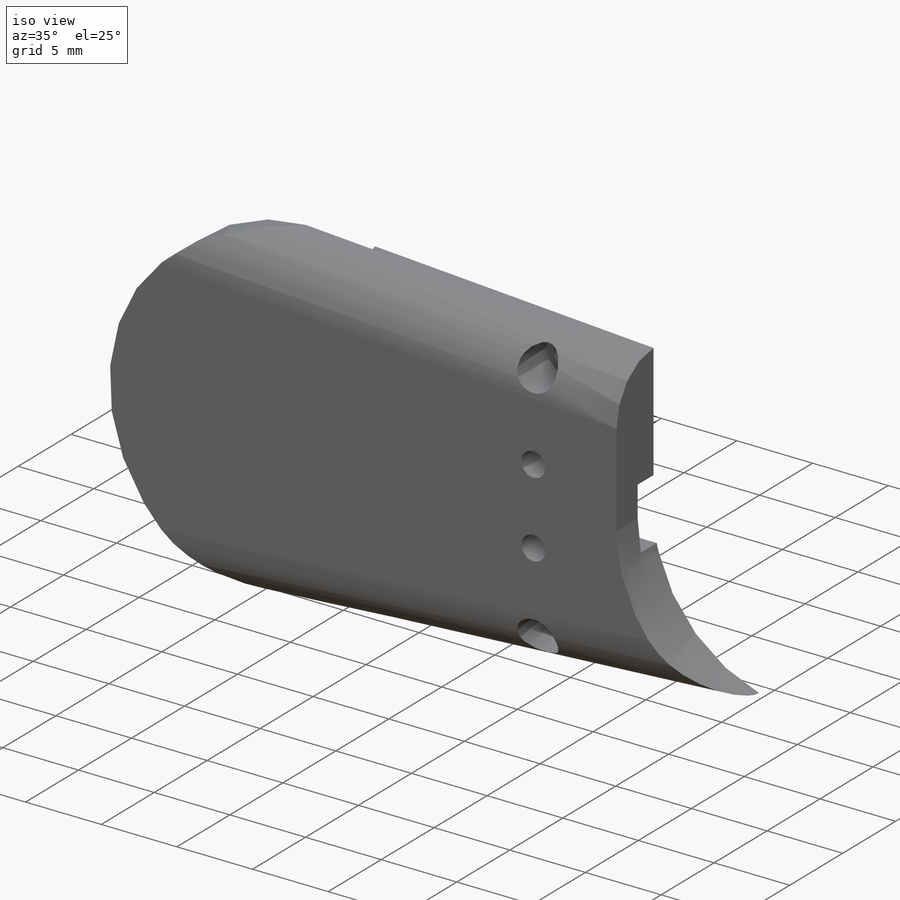
[diagram: iso view]
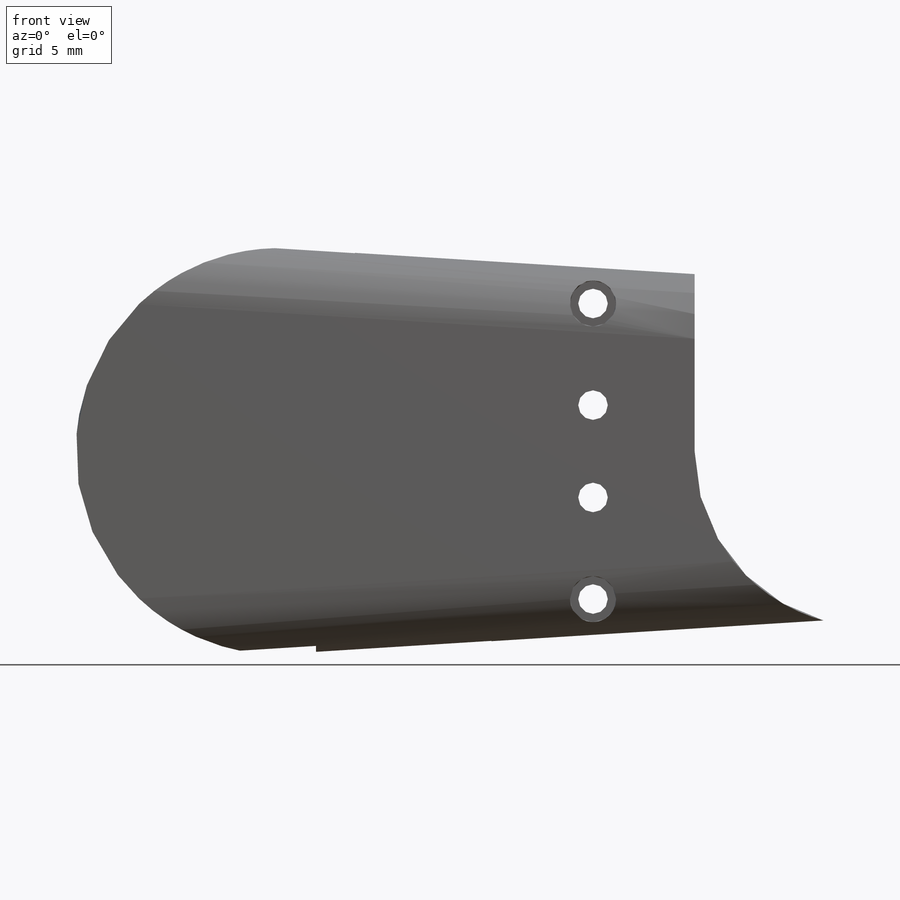
[diagram: front view]
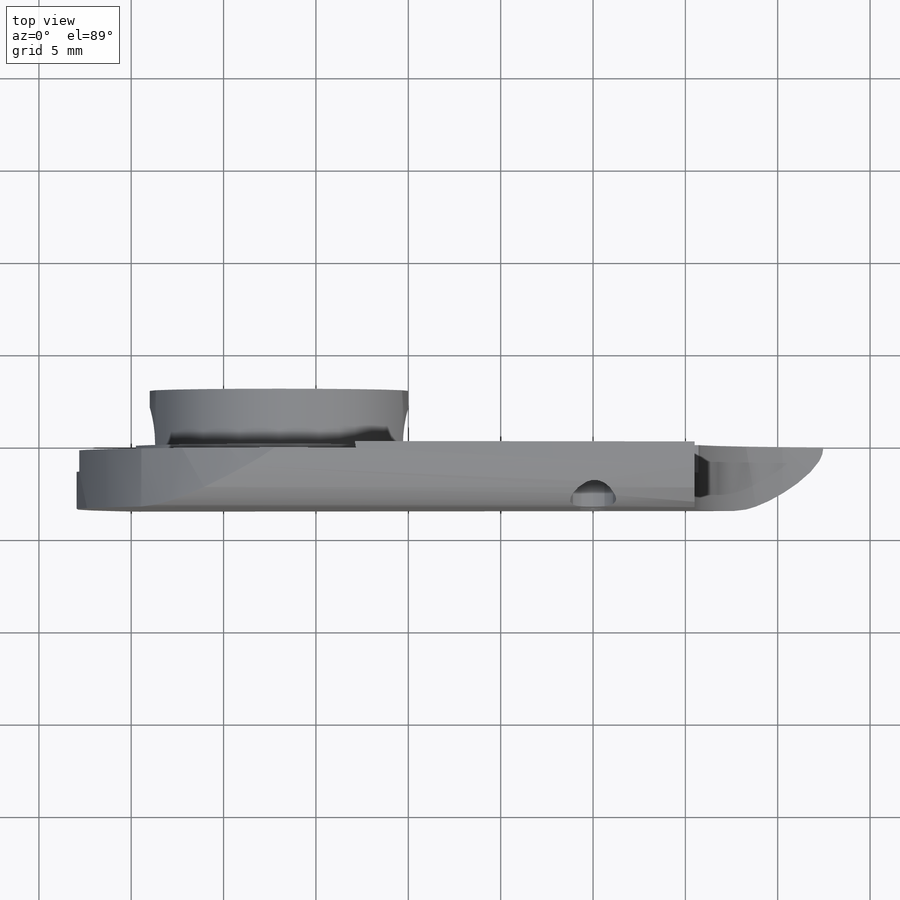
[diagram: top view]
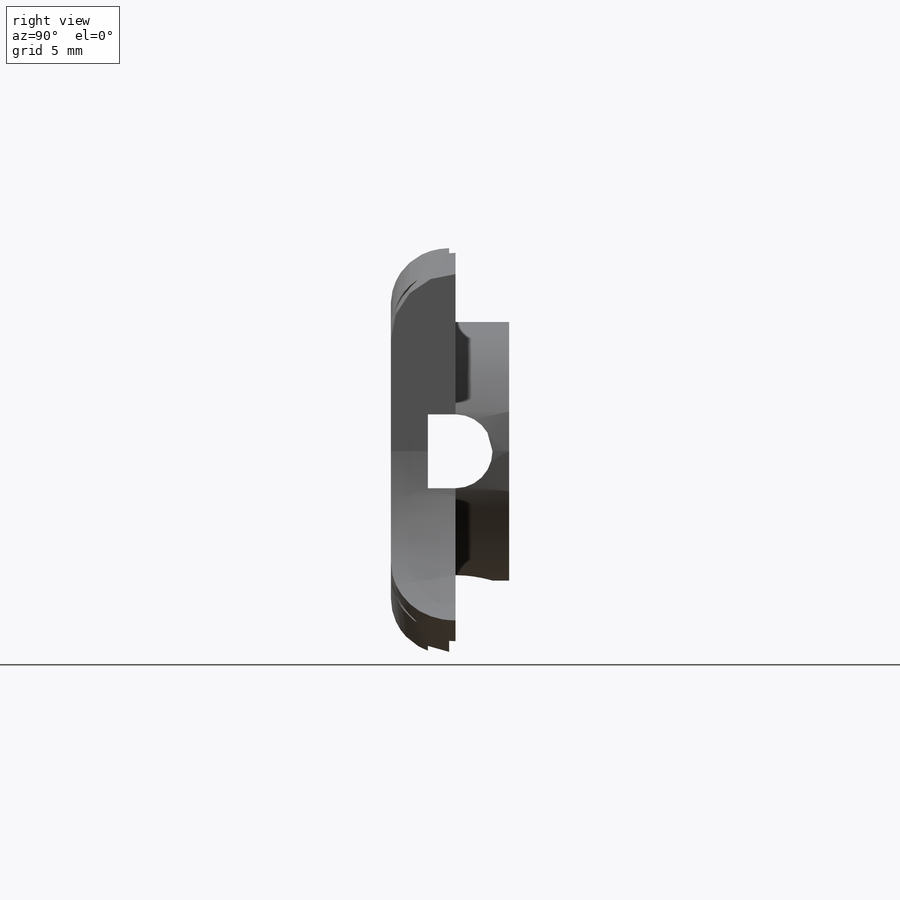
[diagram: right view]
SOLIDWORKS PART (.sldprt)
format: sldprt  version: not decoded by parser v0  size: 308,224 bytes
history: native  units: mm
features: sketch x8, cut_extrude x5, extrude x3, material x1, fillet x1 (+15 scaffold rows collapsed; 2 parser-record rows omitted)
feature tree (35):
  scaffold x15  (default folders/planes/origin — collapsed)
  material  "Material <not specified>"
  sketch  "Sketch1"  dims[D1=~17.864686mm]
  extrude  "Boss-Extrude1"  Depth=3.5mm
  sketch  "Sketch8"  dims[D1=~51.422309mm]
  cut_extrude  "Joint Hole"  Depth=0.35mm
  sketch  "Sketch3"  dims[D1=4.5mm]
  extrude  "Joint Insert"  Depth=3.25mm
  sketch  "Sketch4"  dims[D1=5.0mm]
  extrude  "Friction"  Depth=0.25mm
  parser-record x2  (decoder bookkeeping rows leaked as tree rows — omitted from the tree; the rows remain in map.json)
  sketch  "Sketch6"  dims[D1=~2.649211mm]
  cut_extrude  "Cut-Extrude2"  Depth=43mm
  sketch  "Sketch7"  dims[D1=11.0mm]
  cut_extrude  "Cut-Extrude3"  Depth=11mm
  sketch  "Sketch2"  dims[D1=2.5mm]
  cut_extrude  "Screw Holes"  [1 undecoded]
  fillet  "Fillet1"  Radius=3.5mm
  sketch  "Sketch9"  dims[D1=2.5mm]
  cut_extrude  "Cut-Extrude4"  Depth=3mm
decode coverage: 16 of 17 modeling features carry decoded parameters
note: ~ marks probable driven/reference dimensions
note: 1 parameter value undecoded
note: suppression state not decoded; provenance and decode notes live in map.json
